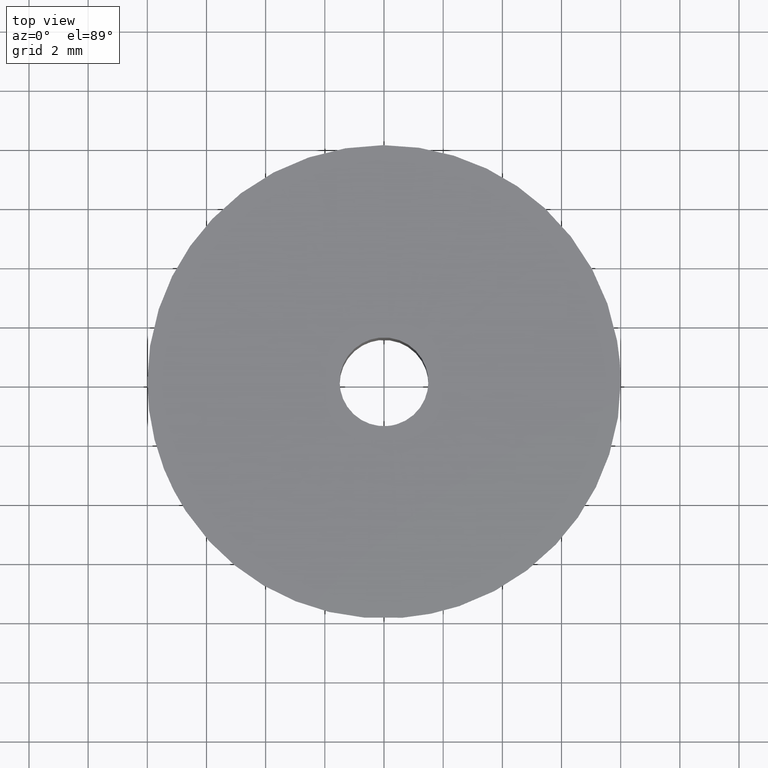
[diagram: clean part render]
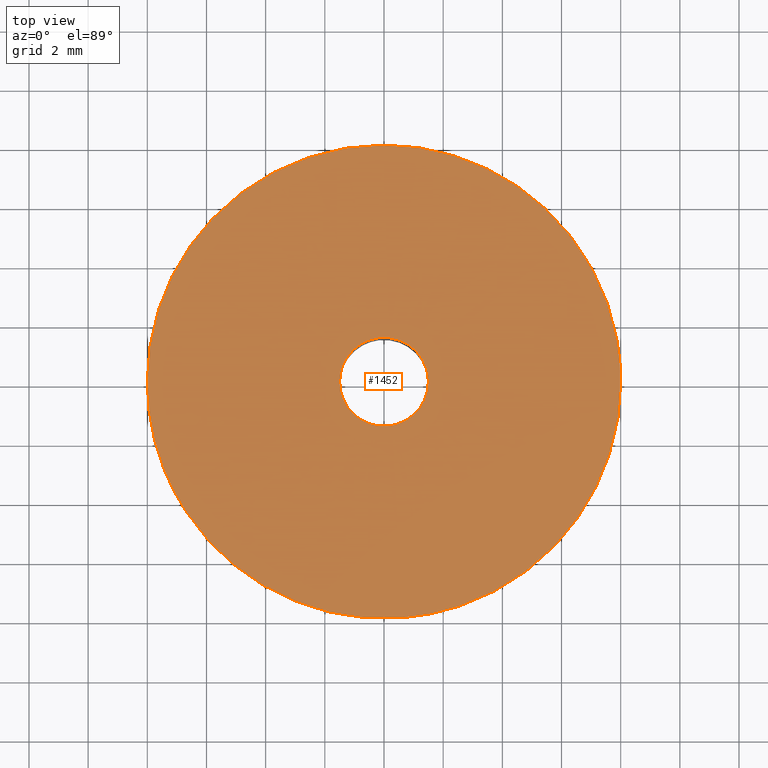
[diagram: same view with one face highlighted and labeled with its STEP entity id]
A machine part, top view. The second image highlights one B-rep face of the part: STEP entity #1452.
In plain terms, the highlighted face is a freeform B-spline surface patch.
Its self-contained STEP definition (entity closure, byte-faithful):
#526=CARTESIAN_POINT('',(0.627668169485766,-7.975338907683108,9.999998764631325));
#527=VERTEX_POINT('',#526);
#533=CARTESIAN_POINT('',(-7.438916272477776,-2.943216357877094,9.999998648885782));
#534=VERTEX_POINT('',#533);
#535=CARTESIAN_POINT('',(0.627668169485766,-7.975338907683107,9.999998764631325));
#536=CARTESIAN_POINT('',(0.314318546002484,-7.999999878795723,9.999998761553600));
#537=CARTESIAN_POINT('',(-2.298250E-009,-7.999999880855962,9.999998758306962));
#538=CARTESIAN_POINT('',(-5.438193696883211,-7.999999916501270,9.999998702135152));
#539=CARTESIAN_POINT('',(-7.438916272477776,-2.943216357877094,9.999998648885782));
#547=(BOUNDED_CURVE()B_SPLINE_CURVE(2,(#535,#536,#537,#538,#539),.UNSPECIFIED.,.F.,.U.)B_SPLINE_CURVE_WITH_KNOTS((3,2,3),(0.736331399219582,0.750000000000000,0.937532605541042),.UNSPECIFIED.)CURVE()GEOMETRIC_REPRESENTATION_ITEM()RATIONAL_B_SPLINE_CURVE((0.969723561915069,0.983986238082989,1.0,0.780291886122443,0.890203252676616))REPRESENTATION_ITEM(''));
#548=EDGE_CURVE('',#527,#534,#547,.T.);
#600=CARTESIAN_POINT('',(-8.0,0.0,10.0));
#601=VERTEX_POINT('',#600);
#602=CARTESIAN_POINT('',(-7.438916272477776,-2.943216357877094,9.999998648885782));
#603=CARTESIAN_POINT('',(-7.999999937182126,-1.525089602780604,9.999999324442891));
#604=CARTESIAN_POINT('',(-8.0,0.0,10.0));
#612=(BOUNDED_CURVE()B_SPLINE_CURVE(2,(#602,#603,#604),.UNSPECIFIED.,.F.,.U.)B_SPLINE_CURVE_WITH_KNOTS((3,3),(0.937532605541042,1.0),.UNSPECIFIED.)CURVE()GEOMETRIC_REPRESENTATION_ITEM()RATIONAL_B_SPLINE_CURVE((0.890203252676616,0.926814895064105,1.0))REPRESENTATION_ITEM(''));
#613=EDGE_CURVE('',#534,#601,#612,.T.);
#615=CARTESIAN_POINT('',(8.0,0.0,10.0));
#616=VERTEX_POINT('',#615);
#617=CARTESIAN_POINT('',(-8.0,0.0,10.0));
#618=CARTESIAN_POINT('',(-8.0,8.0,10.000000000000002));
#619=CARTESIAN_POINT('',(0.0,8.0,10.0));
#620=CARTESIAN_POINT('',(8.0,8.0,10.000000000000002));
#621=CARTESIAN_POINT('',(8.0,0.0,10.0));
#629=(BOUNDED_CURVE()B_SPLINE_CURVE(2,(#617,#618,#619,#620,#621),.UNSPECIFIED.,.F.,.U.)B_SPLINE_CURVE_WITH_KNOTS((3,2,3),(0.0,0.250000000000000,0.500000000000000),.UNSPECIFIED.)CURVE()GEOMETRIC_REPRESENTATION_ITEM()RATIONAL_B_SPLINE_CURVE((1.0,0.707106781186548,1.0,0.707106781186548,1.0))REPRESENTATION_ITEM(''));
#630=EDGE_CURVE('',#601,#616,#629,.T.);
#632=CARTESIAN_POINT('',(8.0,0.0,10.0));
#633=CARTESIAN_POINT('',(7.999999995153689,-7.395128137799933,9.999999382315663));
#634=CARTESIAN_POINT('',(0.627668169485766,-7.975338907683107,9.999998764631325));
#642=(BOUNDED_CURVE()B_SPLINE_CURVE(2,(#632,#633,#634),.UNSPECIFIED.,.F.,.U.)B_SPLINE_CURVE_WITH_KNOTS((3,3),(0.500000000000000,0.736331399219582),.UNSPECIFIED.)CURVE()GEOMETRIC_REPRESENTATION_ITEM()RATIONAL_B_SPLINE_CURVE((1.0,0.723120543103558,0.969723561915069))REPRESENTATION_ITEM(''));
#643=EDGE_CURVE('',#616,#527,#642,.T.);
#731=CARTESIAN_POINT('',(-0.177051351996448,1.489514289544155,10.0));
#732=VERTEX_POINT('',#731);
#733=CARTESIAN_POINT('',(1.500000000000000,0.0,10.0));
#734=VERTEX_POINT('',#733);
#735=CARTESIAN_POINT('',(-0.177051351996448,1.489514289544155,10.0));
#736=CARTESIAN_POINT('',(-0.088836179489295,1.500000000000000,9.999999999999998));
#737=CARTESIAN_POINT('',(0.0,1.500000000000000,10.0));
#738=CARTESIAN_POINT('',(1.500000000000000,1.500000000000000,10.000000000000002));
#739=CARTESIAN_POINT('',(1.500000000000000,0.0,10.0));
#747=(BOUNDED_CURVE()B_SPLINE_CURVE(2,(#735,#736,#737,#738,#739),.UNSPECIFIED.,.F.,.U.)B_SPLINE_CURVE_WITH_KNOTS((3,2,3),(0.229562473513078,0.250000000000000,0.500000000000000),.UNSPECIFIED.)CURVE()GEOMETRIC_REPRESENTATION_ITEM()RATIONAL_B_SPLINE_CURVE((0.956026754182855,0.976055948330640,1.0,0.707106781186548,1.0))REPRESENTATION_ITEM(''));
#748=EDGE_CURVE('',#732,#734,#747,.T.);
#789=CARTESIAN_POINT('',(0.091572809311081,-1.497202197632262,10.0));
#790=VERTEX_POINT('',#789);
#796=CARTESIAN_POINT('',(1.500000000000000,0.0,10.0));
#797=CARTESIAN_POINT('',(1.500000000000001,-1.411059100341942,9.999999999999998));
#798=CARTESIAN_POINT('',(0.091572809311081,-1.497202197632263,10.0));
#806=(BOUNDED_CURVE()B_SPLINE_CURVE(2,(#796,#797,#798),.UNSPECIFIED.,.F.,.U.)B_SPLINE_CURVE_WITH_KNOTS((3,3),(0.500000000000000,0.739332962239942),.UNSPECIFIED.)CURVE()GEOMETRIC_REPRESENTATION_ITEM()RATIONAL_B_SPLINE_CURVE((1.0,0.719603993285540,0.976072041668859))REPRESENTATION_ITEM(''));
#807=EDGE_CURVE('',#734,#790,#806,.T.);
#830=CARTESIAN_POINT('',(-1.500000000000000,0.0,10.0));
#831=VERTEX_POINT('',#830);
#832=CARTESIAN_POINT('',(-1.500000000000000,0.0,10.0));
#833=CARTESIAN_POINT('',(-1.500000000000001,1.332261788906676,10.0));
#834=CARTESIAN_POINT('',(-0.177051351996448,1.489514289544155,10.0));
#842=(BOUNDED_CURVE()B_SPLINE_CURVE(2,(#832,#833,#834),.UNSPECIFIED.,.F.,.U.)B_SPLINE_CURVE_WITH_KNOTS((3,3),(0.0,0.229562473513078),.UNSPECIFIED.)CURVE()GEOMETRIC_REPRESENTATION_ITEM()RATIONAL_B_SPLINE_CURVE((1.0,0.731050832855907,0.956026754182855))REPRESENTATION_ITEM(''));
#843=EDGE_CURVE('',#831,#732,#842,.T.);
#845=CARTESIAN_POINT('',(0.091572809311081,-1.497202197632263,10.0));
#846=CARTESIAN_POINT('',(0.045829144956703,-1.500000000000000,10.000000000000002));
#847=CARTESIAN_POINT('',(0.0,-1.500000000000000,10.0));
#848=CARTESIAN_POINT('',(-1.500000000000000,-1.500000000000000,10.000000000000002));
#849=CARTESIAN_POINT('',(-1.500000000000000,0.0,10.0));
#857=(BOUNDED_CURVE()B_SPLINE_CURVE(2,(#845,#846,#847,#848,#849),.UNSPECIFIED.,.F.,.U.)B_SPLINE_CURVE_WITH_KNOTS((3,2,3),(0.739332962239941,0.750000000000000,1.0),.UNSPECIFIED.)CURVE()GEOMETRIC_REPRESENTATION_ITEM()RATIONAL_B_SPLINE_CURVE((0.976072041668857,0.987502787901007,1.0,0.707106781186548,1.0))REPRESENTATION_ITEM(''));
#858=EDGE_CURVE('',#790,#831,#857,.T.);
#1435=CARTESIAN_POINT('',(8.799199968988896,-8.799033250815869,10.0));
#1436=CARTESIAN_POINT('',(-8.799200398142338,-8.799033250815869,10.0));
#1437=CARTESIAN_POINT('',(8.799199968988896,8.799192466742992,10.0));
#1438=CARTESIAN_POINT('',(-8.799200398142338,8.799192466742992,10.0));
#1439=B_SPLINE_SURFACE_WITH_KNOTS('',1,1,((#1435,#1437),(#1436,#1438)),.UNSPECIFIED.,.F.,.F.,.U.,(2,2),(2,2),(0.0,17.598400367131230),(0.0,17.598225717558861),.UNSPECIFIED.);
#1440=ORIENTED_EDGE('',*,*,#613,.F.);
#1441=ORIENTED_EDGE('',*,*,#548,.F.);
#1442=ORIENTED_EDGE('',*,*,#643,.F.);
#1443=ORIENTED_EDGE('',*,*,#630,.F.);
#1444=EDGE_LOOP('',(#1440,#1441,#1442,#1443));
#1445=FACE_OUTER_BOUND('',#1444,.T.);
#1446=ORIENTED_EDGE('',*,*,#807,.T.);
#1447=ORIENTED_EDGE('',*,*,#858,.T.);
#1448=ORIENTED_EDGE('',*,*,#843,.T.);
#1449=ORIENTED_EDGE('',*,*,#748,.T.);
#1450=EDGE_LOOP('',(#1446,#1447,#1448,#1449));
#1451=FACE_BOUND('',#1450,.T.);
#1452=ADVANCED_FACE('',(#1445,#1451),#1439,.F.);